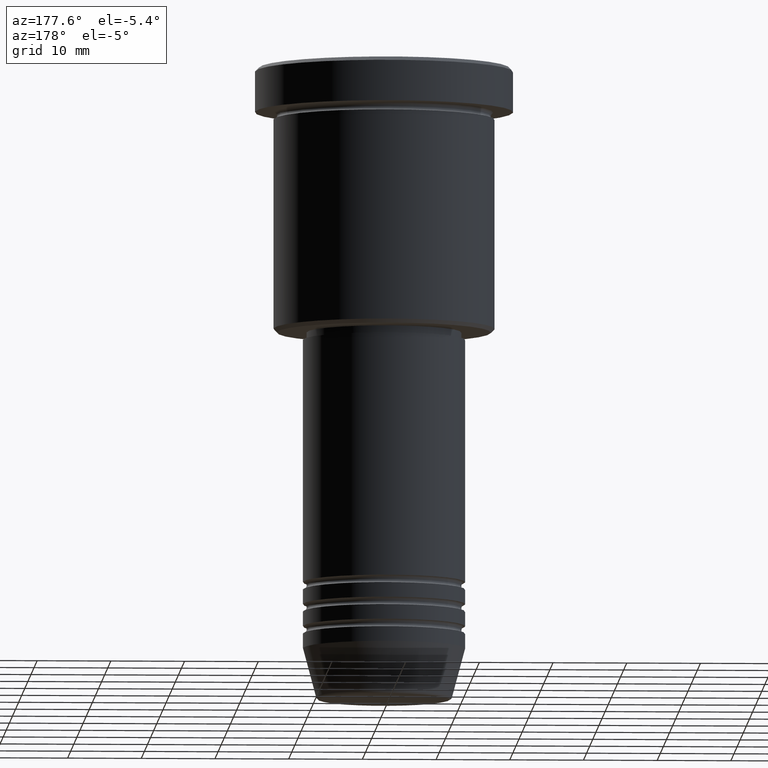
[diagram: clean part render]
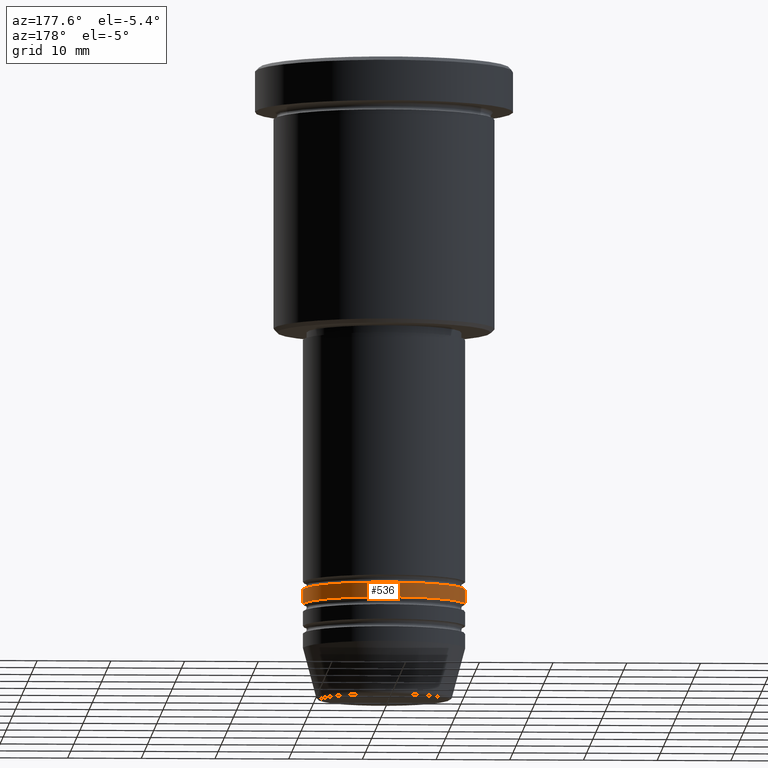
[diagram: same view with one face highlighted and labeled with its STEP entity id]
A machine part, auxiliary view. The second image highlights one B-rep face of the part: STEP entity #536.
In plain terms, the highlighted cylindrical surface (partial cylindrical patch) has radius 11 mm, axis along (-0, -0, 1).
Its self-contained STEP definition (entity closure, byte-faithful):
#24 = VERTEX_POINT ( 'NONE', #1175 ) ;
#38 = VERTEX_POINT ( 'NONE', #1181 ) ;
#47 = VERTEX_POINT ( 'NONE', #711 ) ;
#149 = CARTESIAN_POINT ( 'NONE',  ( -11.00000000000000000, 1.347111479062088405E-15, -72.99999999999998579 ) ) ;
#186 = EDGE_CURVE ( 'NONE', #47, #24, #755, .T. ) ;
#188 = DIRECTION ( 'NONE',  ( -0.000000000000000000, -0.000000000000000000, 1.000000000000000000 ) ) ;
#223 = CARTESIAN_POINT ( 'NONE',  ( 0.000000000000000000, 0.000000000000000000, -70.99999999999998579 ) ) ;
#267 = DIRECTION ( 'NONE',  ( -0.000000000000000000, -0.000000000000000000, 1.000000000000000000 ) ) ;
#284 = CARTESIAN_POINT ( 'NONE',  ( -11.00000000000000000, 1.347111479062088405E-15, 0.000000000000000000 ) ) ;
#332 = DIRECTION ( 'NONE',  ( -0.000000000000000000, -0.000000000000000000, 1.000000000000000000 ) ) ;
#340 = EDGE_CURVE ( 'NONE', #24, #38, #1163, .T. ) ;
#350 = CIRCLE ( 'NONE', #1044, 11.00000000000000000 ) ;
#353 = AXIS2_PLACEMENT_3D ( 'NONE', #223, #686, #864 ) ;
#365 = VECTOR ( 'NONE', #188, 1000.000000000000000 ) ;
#383 = DIRECTION ( 'NONE',  ( -0.000000000000000000, -0.000000000000000000, 1.000000000000000000 ) ) ;
#404 = AXIS2_PLACEMENT_3D ( 'NONE', #902, #267, #795 ) ;
#536 = ADVANCED_FACE ( 'NONE', ( #622 ), #1095, .T. ) ;
#554 = ORIENTED_EDGE ( 'NONE', *, *, #186, .F. ) ;
#576 = VECTOR ( 'NONE', #383, 1000.000000000000000 ) ;
#622 = FACE_OUTER_BOUND ( 'NONE', #1008, .T. ) ;
#641 = ORIENTED_EDGE ( 'NONE', *, *, #1002, .T. ) ;
#686 = DIRECTION ( 'NONE',  ( -0.000000000000000000, -0.000000000000000000, 1.000000000000000000 ) ) ;
#693 = EDGE_CURVE ( 'NONE', #809, #38, #937, .T. ) ;
#709 = DIRECTION ( 'NONE',  ( 1.000000000000000000, 0.000000000000000000, 0.000000000000000000 ) ) ;
#711 = CARTESIAN_POINT ( 'NONE',  ( 11.00000000000000000, 0.000000000000000000, -72.99999999999998579 ) ) ;
#755 = LINE ( 'NONE', #918, #576 ) ;
#795 = DIRECTION ( 'NONE',  ( 1.000000000000000000, 0.000000000000000000, 0.000000000000000000 ) ) ;
#809 = VERTEX_POINT ( 'NONE', #149 ) ;
#860 = ORIENTED_EDGE ( 'NONE', *, *, #340, .F. ) ;
#864 = DIRECTION ( 'NONE',  ( 1.000000000000000000, 0.000000000000000000, 0.000000000000000000 ) ) ;
#901 = CARTESIAN_POINT ( 'NONE',  ( 0.000000000000000000, 0.000000000000000000, -72.99999999999998579 ) ) ;
#902 = CARTESIAN_POINT ( 'NONE',  ( 0.000000000000000000, 0.000000000000000000, 0.000000000000000000 ) ) ;
#918 = CARTESIAN_POINT ( 'NONE',  ( 11.00000000000000000, 0.000000000000000000, 0.000000000000000000 ) ) ;
#937 = LINE ( 'NONE', #284, #365 ) ;
#1002 = EDGE_CURVE ( 'NONE', #47, #809, #350, .T. ) ;
#1008 = EDGE_LOOP ( 'NONE', ( #641, #1058, #860, #554 ) ) ;
#1044 = AXIS2_PLACEMENT_3D ( 'NONE', #901, #332, #709 ) ;
#1058 = ORIENTED_EDGE ( 'NONE', *, *, #693, .T. ) ;
#1095 = CYLINDRICAL_SURFACE ( 'NONE', #404, 11.00000000000000000 ) ;
#1163 = CIRCLE ( 'NONE', #353, 11.00000000000000000 ) ;
#1175 = CARTESIAN_POINT ( 'NONE',  ( 11.00000000000000000, 0.000000000000000000, -70.99999999999998579 ) ) ;
#1181 = CARTESIAN_POINT ( 'NONE',  ( -11.00000000000000000, 1.347111479062088405E-15, -70.99999999999998579 ) ) ;